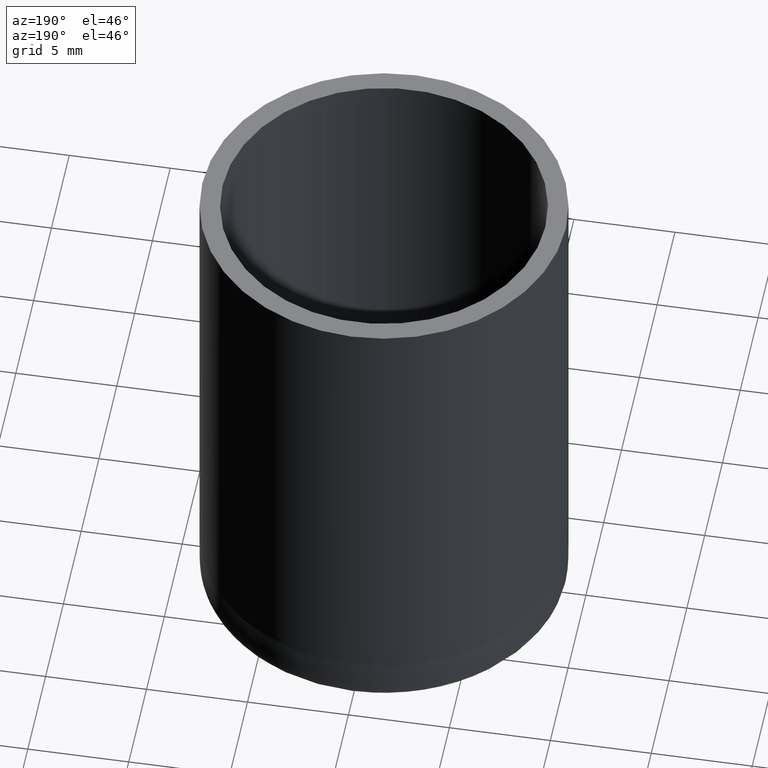
[diagram: clean part render]
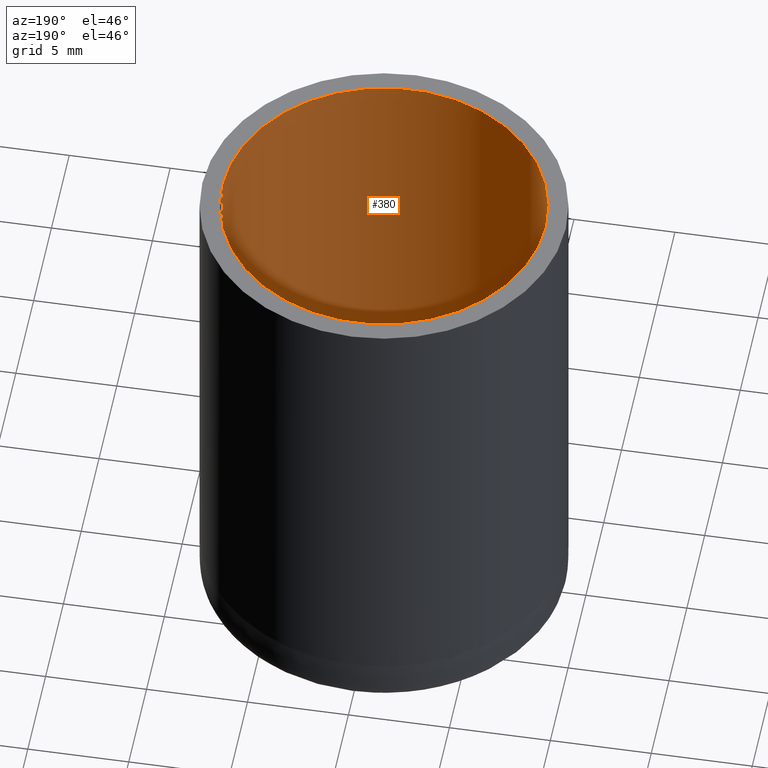
[diagram: same view with one face highlighted and labeled with its STEP entity id]
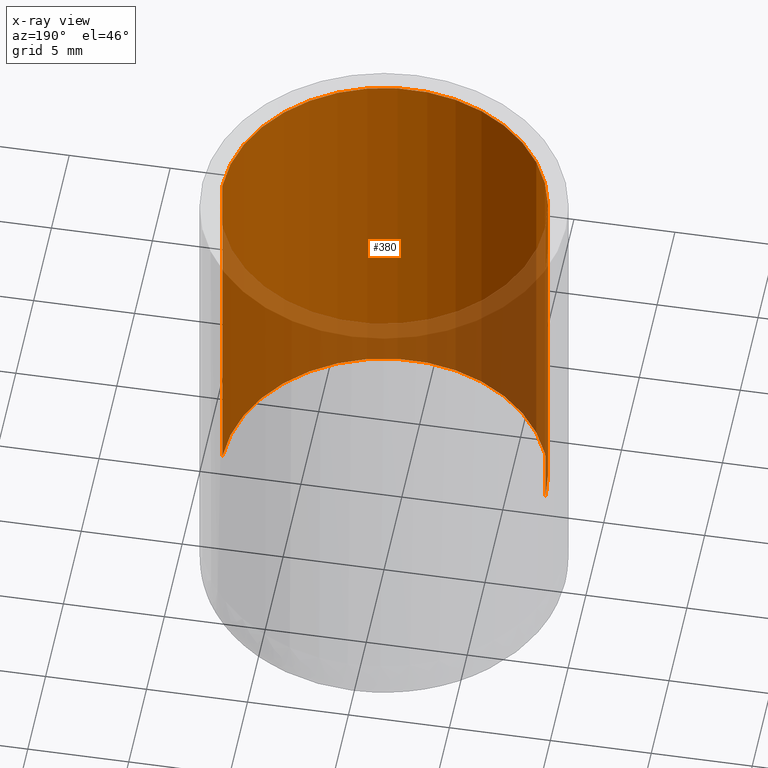
[diagram: x-ray of the same camera — body ghosted, the highlighted face saturated]
A machine part, auxiliary view. The second image highlights one B-rep face of the part: STEP entity #380.
The next image is the same camera in x-ray: the body ghosted, the highlighted face saturated — about 31% of this face is hidden behind the body in this view.
In plain terms, the highlighted cylindrical surface (partial cylindrical patch) has radius 8 mm, axis along (0, -0, -1).
Its self-contained STEP definition (entity closure, byte-faithful):
#42 = CARTESIAN_POINT ( 'NONE',  ( 3.230422529338457500E-016, 0.0000000000000000000, 6.000000000000003600 ) ) ;
#61 = AXIS2_PLACEMENT_3D ( 'NONE', #369, #472, #86 ) ;
#67 = VERTEX_POINT ( 'NONE', #365 ) ;
#86 = DIRECTION ( 'NONE',  ( -1.000000000000000000, 0.0000000000000000000, 0.0000000000000000000 ) ) ;
#97 = CARTESIAN_POINT ( 'NONE',  ( 8.000000000000001800, 9.797174393178827600E-016, 6.000000000000003600 ) ) ;
#101 = LINE ( 'NONE', #470, #277 ) ;
#107 = CIRCLE ( 'NONE', #588, 8.000000000000000000 ) ;
#126 = DIRECTION ( 'NONE',  ( 1.000000000000000000, 0.0000000000000000000, 0.0000000000000000000 ) ) ;
#139 = EDGE_LOOP ( 'NONE', ( #354, #386, #590, #494 ) ) ;
#161 = VERTEX_POINT ( 'NONE', #407 ) ;
#183 = DIRECTION ( 'NONE',  ( 1.478392893678685000E-017, -0.0000000000000000000, -1.000000000000000000 ) ) ;
#205 = EDGE_CURVE ( 'NONE', #161, #218, #107, .T. ) ;
#218 = VERTEX_POINT ( 'NONE', #226 ) ;
#226 = CARTESIAN_POINT ( 'NONE',  ( -8.000000000000000000, 0.0000000000000000000, 25.00000000000000000 ) ) ;
#235 = DIRECTION ( 'NONE',  ( 1.478392893678685000E-017, -0.0000000000000000000, -1.000000000000000000 ) ) ;
#277 = VECTOR ( 'NONE', #331, 1000.000000000000000 ) ;
#293 = CIRCLE ( 'NONE', #597, 8.000000000000001800 ) ;
#301 = EDGE_CURVE ( 'NONE', #161, #503, #101, .T. ) ;
#331 = DIRECTION ( 'NONE',  ( 1.478392893678685000E-017, -0.0000000000000000000, -1.000000000000000000 ) ) ;
#354 = ORIENTED_EDGE ( 'NONE', *, *, #205, .F. ) ;
#365 = CARTESIAN_POINT ( 'NONE',  ( -8.000000000000001800, 0.0000000000000000000, 6.000000000000003600 ) ) ;
#369 = CARTESIAN_POINT ( 'NONE',  ( 3.673940397442062800E-016, 0.0000000000000000000, 3.000000000000002700 ) ) ;
#380 = ADVANCED_FACE ( 'NONE', ( #599 ), #614, .F. ) ;
#382 = EDGE_CURVE ( 'NONE', #218, #67, #507, .T. ) ;
#386 = ORIENTED_EDGE ( 'NONE', *, *, #301, .T. ) ;
#403 = CARTESIAN_POINT ( 'NONE',  ( 4.214760313489563600E-017, 0.0000000000000000000, 25.00000000000000000 ) ) ;
#407 = CARTESIAN_POINT ( 'NONE',  ( 8.000000000000000000, 9.797174393178825700E-016, 25.00000000000000000 ) ) ;
#416 = EDGE_CURVE ( 'NONE', #503, #67, #293, .T. ) ;
#470 = CARTESIAN_POINT ( 'NONE',  ( 8.000000000000000000, 9.797174393178825700E-016, 3.000000000000002700 ) ) ;
#472 = DIRECTION ( 'NONE',  ( 1.478392893678685000E-017, -0.0000000000000000000, -1.000000000000000000 ) ) ;
#477 = VECTOR ( 'NONE', #235, 1000.000000000000000 ) ;
#494 = ORIENTED_EDGE ( 'NONE', *, *, #382, .F. ) ;
#503 = VERTEX_POINT ( 'NONE', #97 ) ;
#507 = LINE ( 'NONE', #566, #477 ) ;
#514 = DIRECTION ( 'NONE',  ( -0.0000000000000000000, -0.0000000000000000000, -1.000000000000000000 ) ) ;
#521 = DIRECTION ( 'NONE',  ( -1.000000000000000000, 0.0000000000000000000, 0.0000000000000000000 ) ) ;
#566 = CARTESIAN_POINT ( 'NONE',  ( -8.000000000000000000, 0.0000000000000000000, 3.000000000000002700 ) ) ;
#588 = AXIS2_PLACEMENT_3D ( 'NONE', #403, #514, #126 ) ;
#590 = ORIENTED_EDGE ( 'NONE', *, *, #416, .T. ) ;
#597 = AXIS2_PLACEMENT_3D ( 'NONE', #42, #183, #521 ) ;
#599 = FACE_OUTER_BOUND ( 'NONE', #139, .T. ) ;
#614 = CYLINDRICAL_SURFACE ( 'NONE', #61, 8.000000000000000000 ) ;